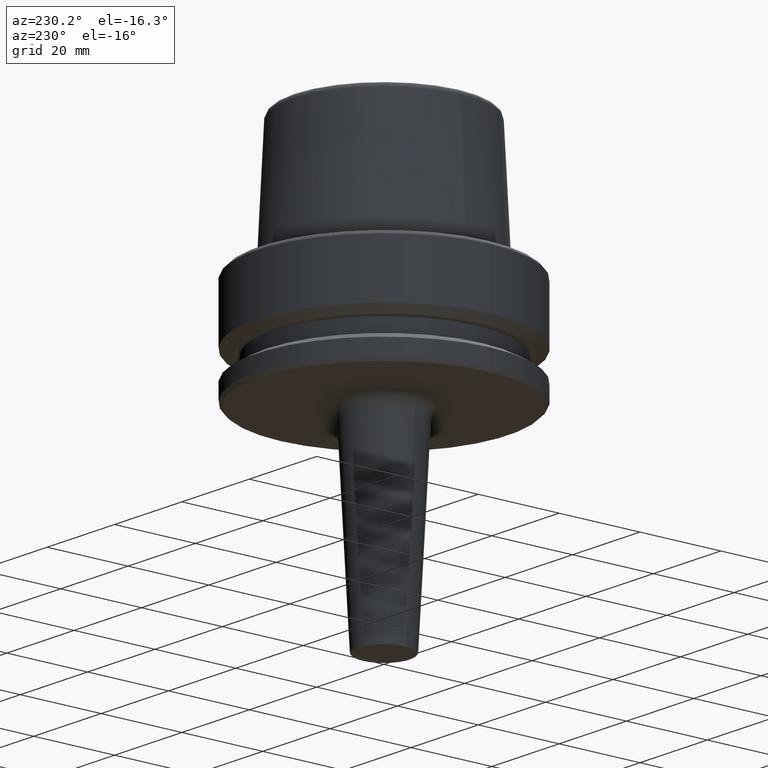
[diagram: clean part render]
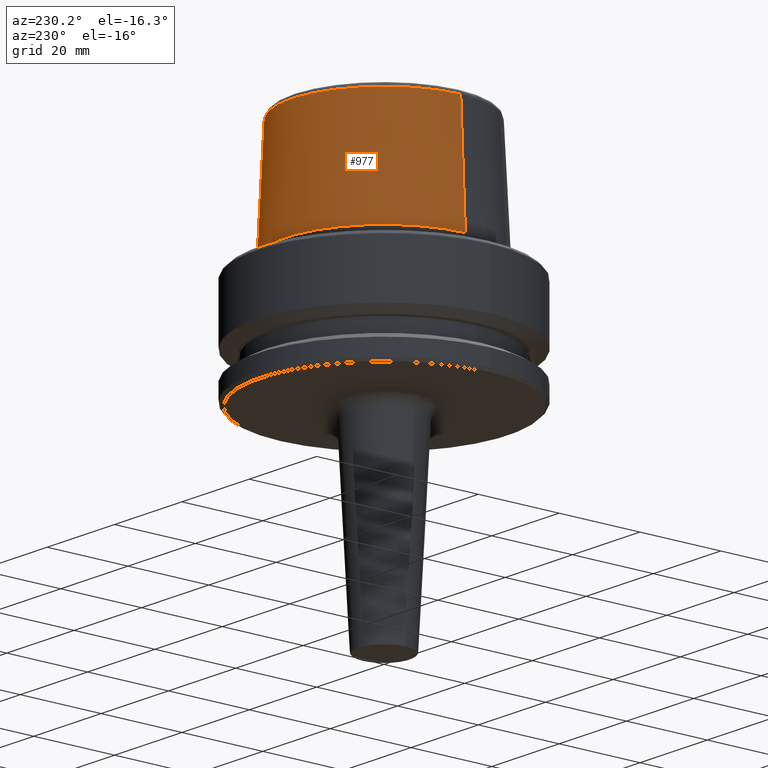
[diagram: same view with one face highlighted and labeled with its STEP entity id]
A machine part, auxiliary view. The second image highlights one B-rep face of the part: STEP entity #977.
In plain terms, the highlighted conical surface has half-angle 2.868 deg.
Its self-contained STEP definition (entity closure, byte-faithful):
#20 = ORIENTED_EDGE ( 'NONE', *, *, #706, .T. ) ;
#24 = DIRECTION ( 'NONE',  ( 0.05003611051310812000, 6.127656258166108900E-018, -0.9987474093306675200 ) ) ;
#31 = CARTESIAN_POINT ( 'NONE',  ( -24.17032625081241900, 0.0000000000000000000, 3.000000000000002700 ) ) ;
#76 = DIRECTION ( 'NONE',  ( -1.000000000000000000, 0.0000000000000000000, 0.0000000000000000000 ) ) ;
#92 = AXIS2_PLACEMENT_3D ( 'NONE', #411, #1093, #506 ) ;
#97 = LINE ( 'NONE', #31, #814 ) ;
#123 = DIRECTION ( 'NONE',  ( -0.05003611051310812000, 0.0000000000000000000, -0.9987474093306675200 ) ) ;
#169 = ORIENTED_EDGE ( 'NONE', *, *, #543, .F. ) ;
#185 = EDGE_CURVE ( 'NONE', #994, #304, #790, .T. ) ;
#237 = CARTESIAN_POINT ( 'NONE',  ( -22.77957961851797100, 0.0000000000000000000, 30.76004333261571900 ) ) ;
#289 = VECTOR ( 'NONE', #24, 1000.000000000000200 ) ;
#304 = VERTEX_POINT ( 'NONE', #1049 ) ;
#305 = EDGE_LOOP ( 'NONE', ( #169, #879, #20, #684 ) ) ;
#330 = CONICAL_SURFACE ( 'NONE', #441, 24.17032625081241900, 0.05005701257456005000 ) ;
#393 = FACE_OUTER_BOUND ( 'NONE', #305, .T. ) ;
#411 = CARTESIAN_POINT ( 'NONE',  ( 0.0000000000000000000, 0.0000000000000000000, 30.76004333261571900 ) ) ;
#441 = AXIS2_PLACEMENT_3D ( 'NONE', #855, #953, #76 ) ;
#506 = DIRECTION ( 'NONE',  ( 1.000000000000000000, 0.0000000000000000000, 0.0000000000000000000 ) ) ;
#512 = DIRECTION ( 'NONE',  ( -0.0000000000000000000, -0.0000000000000000000, 1.000000000000000000 ) ) ;
#543 = EDGE_CURVE ( 'NONE', #994, #765, #577, .T. ) ;
#569 = CARTESIAN_POINT ( 'NONE',  ( 22.77957961851797100, 2.874852597157249900E-015, 30.76004333261571900 ) ) ;
#577 = CIRCLE ( 'NONE', #92, 22.77957961851797100 ) ;
#684 = ORIENTED_EDGE ( 'NONE', *, *, #1048, .F. ) ;
#706 = EDGE_CURVE ( 'NONE', #304, #981, #1239, .T. ) ;
#765 = VERTEX_POINT ( 'NONE', #237 ) ;
#790 = LINE ( 'NONE', #1060, #289 ) ;
#814 = VECTOR ( 'NONE', #123, 1000.000000000000200 ) ;
#855 = CARTESIAN_POINT ( 'NONE',  ( 0.0000000000000000000, 0.0000000000000000000, 3.000000000000002700 ) ) ;
#879 = ORIENTED_EDGE ( 'NONE', *, *, #185, .T. ) ;
#953 = DIRECTION ( 'NONE',  ( 0.0000000000000000000, 0.0000000000000000000, -1.000000000000000000 ) ) ;
#977 = ADVANCED_FACE ( 'NONE', ( #393 ), #330, .T. ) ;
#981 = VERTEX_POINT ( 'NONE', #1150 ) ;
#994 = VERTEX_POINT ( 'NONE', #569 ) ;
#1048 = EDGE_CURVE ( 'NONE', #765, #981, #97, .T. ) ;
#1049 = CARTESIAN_POINT ( 'NONE',  ( 24.17032625081241900, 0.0000000000000000000, 3.000000000000002700 ) ) ;
#1060 = CARTESIAN_POINT ( 'NONE',  ( 24.17032625081241900, 2.960011267740467600E-015, 3.000000000000002700 ) ) ;
#1093 = DIRECTION ( 'NONE',  ( -0.0000000000000000000, -0.0000000000000000000, 1.000000000000000000 ) ) ;
#1100 = CARTESIAN_POINT ( 'NONE',  ( 0.0000000000000000000, 0.0000000000000000000, 3.000000000000002700 ) ) ;
#1139 = AXIS2_PLACEMENT_3D ( 'NONE', #1100, #512, #1190 ) ;
#1150 = CARTESIAN_POINT ( 'NONE',  ( -24.17032625081241900, 2.960011267740467600E-015, 3.000000000000002700 ) ) ;
#1190 = DIRECTION ( 'NONE',  ( 1.000000000000000000, 0.0000000000000000000, 0.0000000000000000000 ) ) ;
#1239 = CIRCLE ( 'NONE', #1139, 24.17032625081241900 ) ;